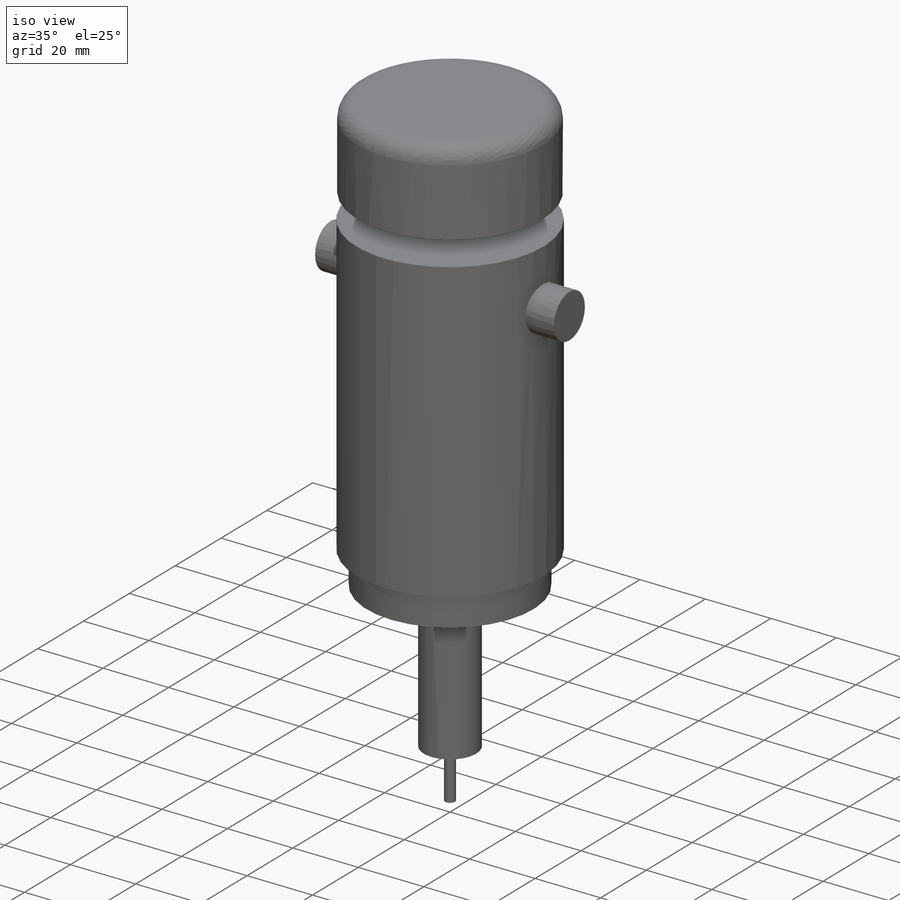
[diagram: iso view]
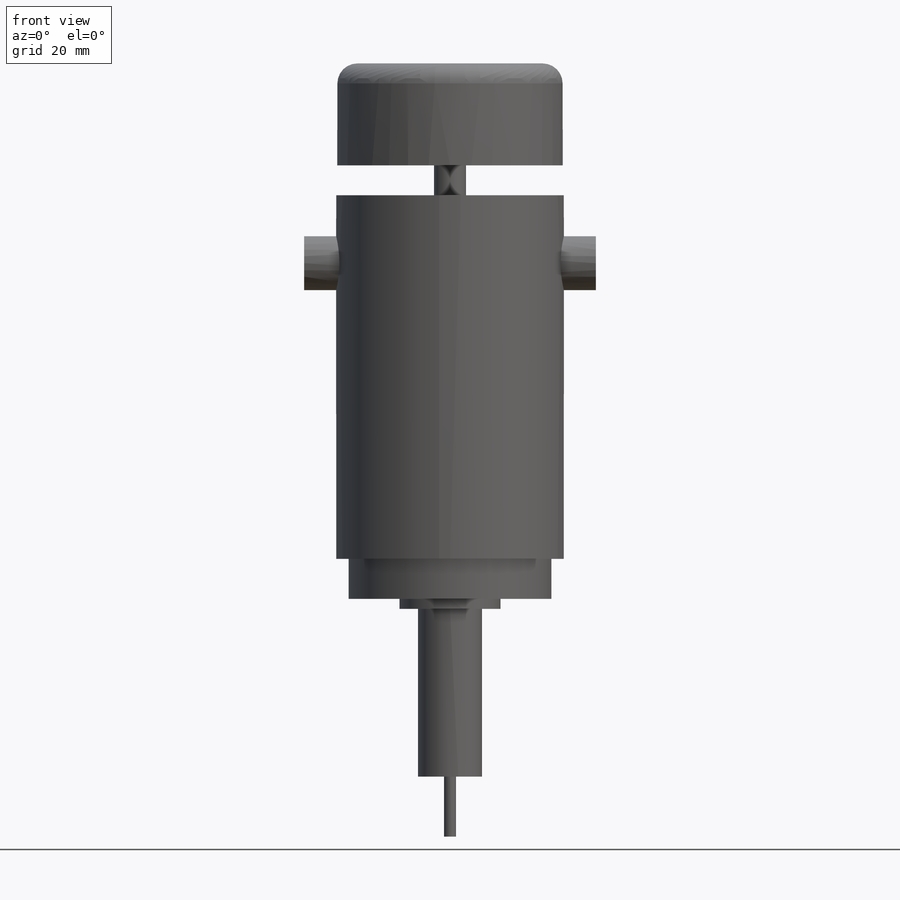
[diagram: front view]
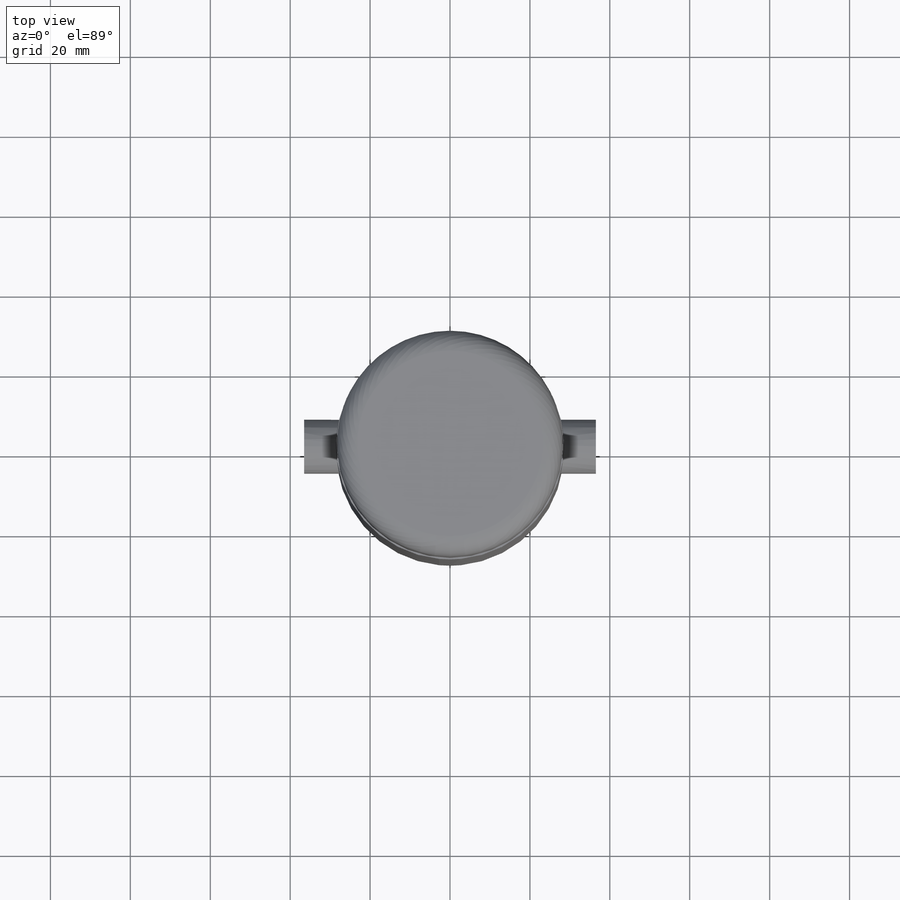
[diagram: top view]
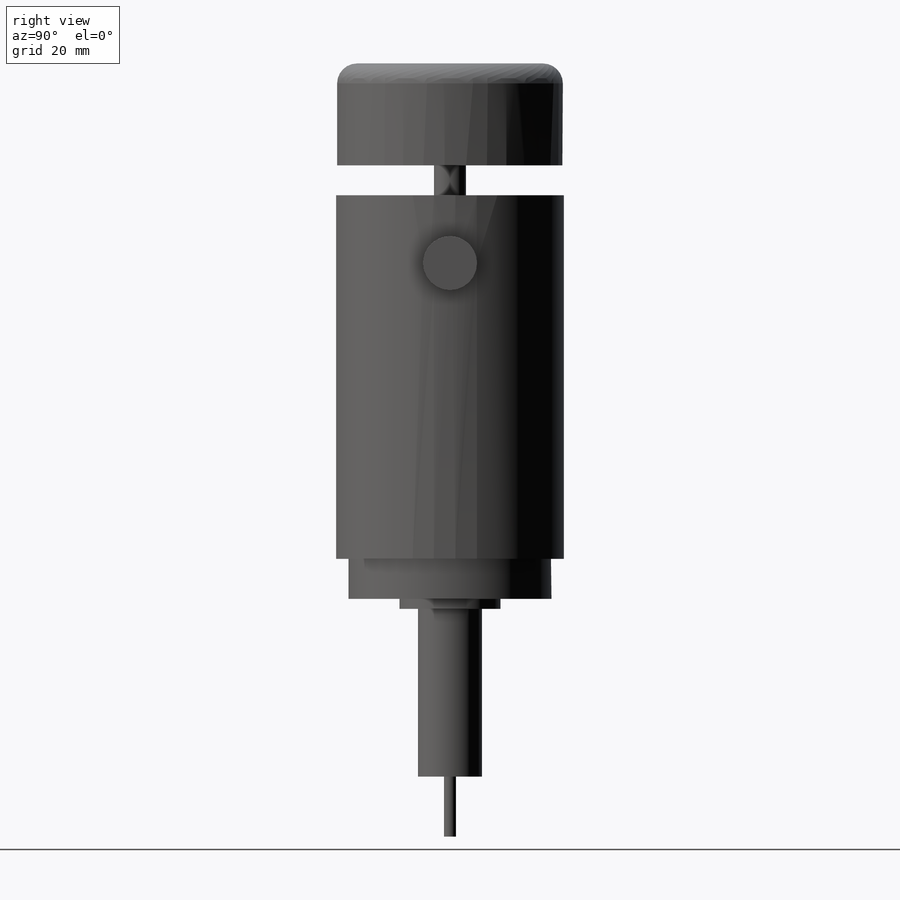
[diagram: right view]
SOLIDWORKS PART (.sldprt)
format: sldprt  version: not decoded by parser v0  size: 195,584 bytes
history: native  units: mm
features: sketch x8, extrude x8, material x1, fillet x1 (+12 scaffold rows collapsed)
feature tree (30):
  scaffold x12  (default folders/planes/origin — collapsed)
  material  "Material <not specified>"
  sketch  "Sketch1"  dims[D1=57.0mm]
  extrude  "Boss-Extrude1"  Depth=91mm
  sketch  "Sketch4"  dims[D1=50.8mm]
  extrude  "Boss-Extrude4"  Depth=10mm
  sketch  "Sketch5"  dims[D1=25.3mm]
  extrude  "Boss-Extrude5"  Depth=2.5mm
  sketch  "Sketch2"  dims[D1=16.0mm]
  extrude  "Boss-Extrude2"  Depth=42mm
  sketch  "Sketch6"  dims[D1=8.0mm]
  extrude  "Boss-Extrude6"  Depth=33mm
  sketch  "Sketch7"  dims[D1=56.5mm]
  extrude  "Boss-Extrude7"  Depth=25.5mm
  fillet  "Fillet1"  Radius=5mm
  sketch  "Sketch3"  dims[D1=3.0mm]
  extrude  "Boss-Extrude3"  Depth=15mm
  sketch  "Sketch8"  dims[D1=13.5mm D2=17.0mm]
  extrude  "Boss-Extrude8"  Depth=73mm
decode coverage: 17 of 17 modeling features carry decoded parameters
note: suppression state not decoded; provenance and decode notes live in map.json
